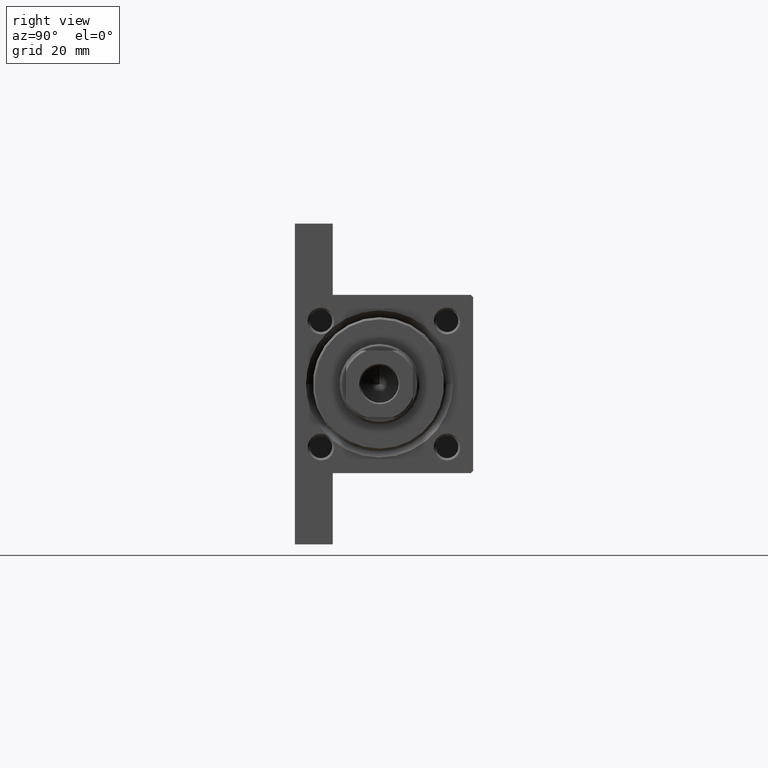
[diagram: clean part render]
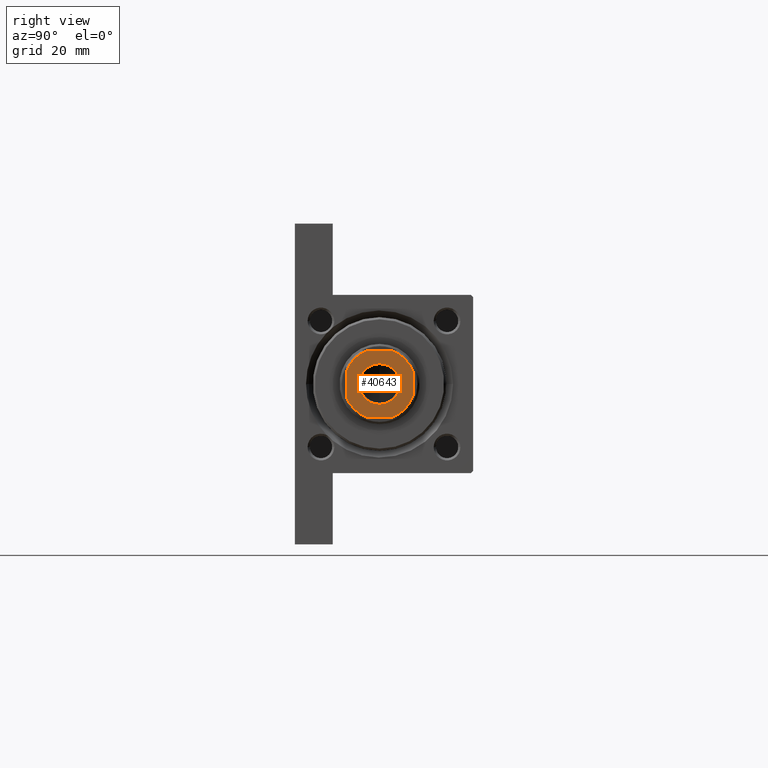
[diagram: same view with one face highlighted and labeled with its STEP entity id]
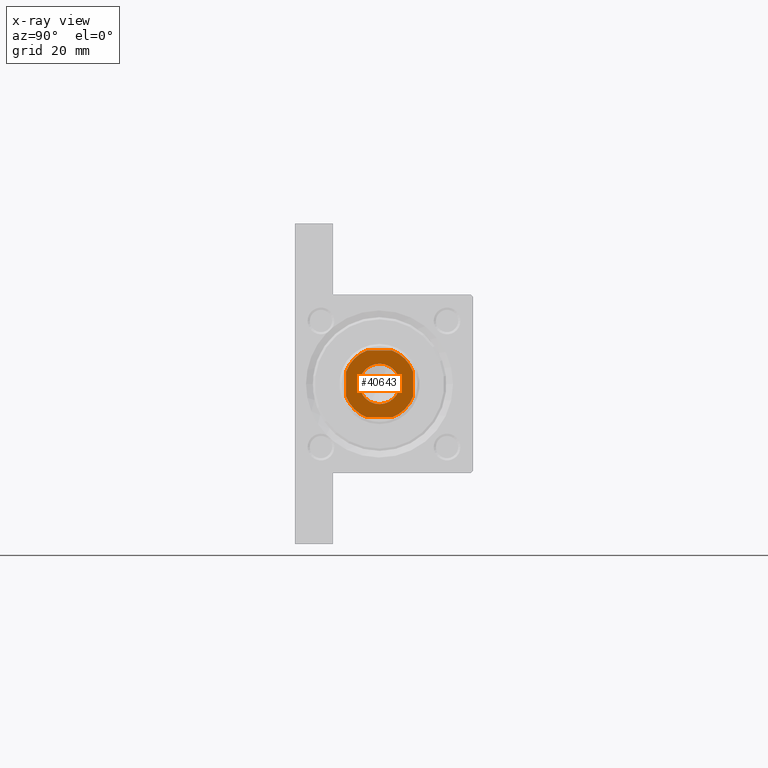
[diagram: x-ray of the same camera — body ghosted, the highlighted face saturated]
A machine part, right view. The second image highlights one B-rep face of the part: STEP entity #40643.
The next image is the same camera in x-ray: the body ghosted, the highlighted face saturated — about 0% of this face is hidden behind the body in this view.
In plain terms, the highlighted planar face has unit normal (1, 0, 0).
Its self-contained STEP definition (entity closure, byte-faithful):
#738 = AXIS2_PLACEMENT_3D ( 'NONE', #45084, #12140, #26824 ) ;
#827 = DIRECTION ( 'NONE',  ( 1.000000000000000000, 0.000000000000000000, 0.000000000000000000 ) ) ;
#1505 = CARTESIAN_POINT ( 'NONE',  ( 0.000000000000000000, 0.000000000000000000, 110.0000000000000000 ) ) ;
#1912 = VERTEX_POINT ( 'NONE', #46128 ) ;
#2195 = ORIENTED_EDGE ( 'NONE', *, *, #21155, .T. ) ;
#2304 = DIRECTION ( 'NONE',  ( 1.000000000000000000, 0.000000000000000000, 0.000000000000000000 ) ) ;
#3823 = EDGE_LOOP ( 'NONE', ( #27108, #17333 ) ) ;
#4742 = AXIS2_PLACEMENT_3D ( 'NONE', #36107, #37052, #32750 ) ;
#4977 = PLANE ( 'NONE',  #43623 ) ;
#5904 = EDGE_CURVE ( 'NONE', #12093, #21364, #44489, .T. ) ;
#5949 = CIRCLE ( 'NONE', #34381, 4.549999999999998934 ) ;
#6183 = VERTEX_POINT ( 'NONE', #38303 ) ;
#6229 = EDGE_CURVE ( 'NONE', #44262, #25656, #28666, .T. ) ;
#8062 = VERTEX_POINT ( 'NONE', #45522 ) ;
#8590 = FACE_OUTER_BOUND ( 'NONE', #15239, .T. ) ;
#8670 = CIRCLE ( 'NONE', #11720, 7.999999999999887201 ) ;
#8885 = DIRECTION ( 'NONE',  ( 0.000000000000000000, -0.000000000000000000, -1.000000000000000000 ) ) ;
#10198 = DIRECTION ( 'NONE',  ( -0.000000000000000000, 0.000000000000000000, 1.000000000000000000 ) ) ;
#10742 = CIRCLE ( 'NONE', #14579, 7.999999999999954703 ) ;
#10821 = DIRECTION ( 'NONE',  ( 1.156482317317871725E-16, -1.000000000000000000, 0.000000000000000000 ) ) ;
#11144 = EDGE_CURVE ( 'NONE', #25656, #37760, #8670, .T. ) ;
#11720 = AXIS2_PLACEMENT_3D ( 'NONE', #44336, #19767, #827 ) ;
#12093 = VERTEX_POINT ( 'NONE', #20023 ) ;
#12140 = DIRECTION ( 'NONE',  ( -0.000000000000000000, 0.000000000000000000, 1.000000000000000000 ) ) ;
#12426 = CARTESIAN_POINT ( 'NONE',  ( 0.000000000000000000, 0.000000000000000000, 110.0000000000000000 ) ) ;
#13321 = ORIENTED_EDGE ( 'NONE', *, *, #39350, .T. ) ;
#14481 = ORIENTED_EDGE ( 'NONE', *, *, #31901, .T. ) ;
#14579 = AXIS2_PLACEMENT_3D ( 'NONE', #17178, #10198, #2304 ) ;
#15104 = CARTESIAN_POINT ( 'NONE',  ( -2.783882181414881973, -7.500000000000000000, 110.0000000000000000 ) ) ;
#15239 = EDGE_LOOP ( 'NONE', ( #43411, #26853, #14481, #2195, #13321, #18226, #23356, #38871 ) ) ;
#16798 = CARTESIAN_POINT ( 'NONE',  ( 2.783882181414688350, 7.499999999999999112, 110.0000000000000000 ) ) ;
#17178 = CARTESIAN_POINT ( 'NONE',  ( 0.000000000000000000, 0.000000000000000000, 110.0000000000000000 ) ) ;
#17333 = ORIENTED_EDGE ( 'NONE', *, *, #36007, .T. ) ;
#17675 = EDGE_CURVE ( 'NONE', #40977, #44262, #10742, .T. ) ;
#18146 = VECTOR ( 'NONE', #40166, 1000.000000000000000 ) ;
#18226 = ORIENTED_EDGE ( 'NONE', *, *, #17675, .T. ) ;
#19767 = DIRECTION ( 'NONE',  ( -0.000000000000000000, 0.000000000000000000, 1.000000000000000000 ) ) ;
#20023 = CARTESIAN_POINT ( 'NONE',  ( 7.500000000000000888, 2.783882181414685686, 110.0000000000000000 ) ) ;
#21155 = EDGE_CURVE ( 'NONE', #6183, #8062, #21603, .T. ) ;
#21364 = VERTEX_POINT ( 'NONE', #16798 ) ;
#21476 = VECTOR ( 'NONE', #25520, 1000.000000000000000 ) ;
#21603 = CIRCLE ( 'NONE', #4742, 7.999999999999954703 ) ;
#21758 = CARTESIAN_POINT ( 'NONE',  ( 4.549999999999998934, 0.000000000000000000, 110.0000000000000000 ) ) ;
#23356 = ORIENTED_EDGE ( 'NONE', *, *, #6229, .T. ) ;
#25482 = CARTESIAN_POINT ( 'NONE',  ( -7.500000000000000000, 7.499999999999998224, 110.0000000000000000 ) ) ;
#25520 = DIRECTION ( 'NONE',  ( 1.000000000000000000, 0.000000000000000000, 0.000000000000000000 ) ) ;
#25656 = VERTEX_POINT ( 'NONE', #27335 ) ;
#25909 = VERTEX_POINT ( 'NONE', #21758 ) ;
#26824 = DIRECTION ( 'NONE',  ( 1.000000000000000000, 0.000000000000000000, 0.000000000000000000 ) ) ;
#26853 = ORIENTED_EDGE ( 'NONE', *, *, #5904, .T. ) ;
#27106 = DIRECTION ( 'NONE',  ( -0.000000000000000000, 0.000000000000000000, 1.000000000000000000 ) ) ;
#27108 = ORIENTED_EDGE ( 'NONE', *, *, #33893, .T. ) ;
#27176 = CARTESIAN_POINT ( 'NONE',  ( 0.000000000000000000, 0.000000000000000000, 110.0000000000000000 ) ) ;
#27335 = CARTESIAN_POINT ( 'NONE',  ( 2.783882181414686574, -7.500000000000000000, 110.0000000000000000 ) ) ;
#27998 = CARTESIAN_POINT ( 'NONE',  ( 7.500000000000000888, -2.783882181414683465, 110.0000000000000000 ) ) ;
#28248 = VECTOR ( 'NONE', #33623, 1000.000000000000000 ) ;
#28666 = LINE ( 'NONE', #32034, #21476 ) ;
#29119 = LINE ( 'NONE', #43765, #38234 ) ;
#29542 = CARTESIAN_POINT ( 'NONE',  ( 7.500000000000000000, 7.500000000000000000, 110.0000000000000000 ) ) ;
#30463 = CIRCLE ( 'NONE', #33515, 4.549999999999998934 ) ;
#31901 = EDGE_CURVE ( 'NONE', #21364, #6183, #32234, .T. ) ;
#32034 = CARTESIAN_POINT ( 'NONE',  ( -7.499999999999998224, -7.500000000000000000, 110.0000000000000000 ) ) ;
#32234 = LINE ( 'NONE', #25482, #18146 ) ;
#32750 = DIRECTION ( 'NONE',  ( 1.000000000000000000, 0.000000000000000000, 0.000000000000000000 ) ) ;
#33515 = AXIS2_PLACEMENT_3D ( 'NONE', #27176, #8885, #33948 ) ;
#33623 = DIRECTION ( 'NONE',  ( -1.156482317317871478E-16, 1.000000000000000000, -0.000000000000000000 ) ) ;
#33893 = EDGE_CURVE ( 'NONE', #25909, #1912, #5949, .T. ) ;
#33948 = DIRECTION ( 'NONE',  ( 1.000000000000000000, 0.000000000000000000, 0.000000000000000000 ) ) ;
#34218 = DIRECTION ( 'NONE',  ( 1.000000000000000000, 0.000000000000000000, 0.000000000000000000 ) ) ;
#34381 = AXIS2_PLACEMENT_3D ( 'NONE', #1505, #45014, #34218 ) ;
#36007 = EDGE_CURVE ( 'NONE', #1912, #25909, #30463, .T. ) ;
#36107 = CARTESIAN_POINT ( 'NONE',  ( 0.000000000000000000, 0.000000000000000000, 110.0000000000000000 ) ) ;
#37052 = DIRECTION ( 'NONE',  ( -0.000000000000000000, 0.000000000000000000, 1.000000000000000000 ) ) ;
#37397 = CARTESIAN_POINT ( 'NONE',  ( -7.499999999999997335, -2.783882181414887302, 110.0000000000000000 ) ) ;
#37760 = VERTEX_POINT ( 'NONE', #27998 ) ;
#38234 = VECTOR ( 'NONE', #10821, 1000.000000000000000 ) ;
#38303 = CARTESIAN_POINT ( 'NONE',  ( -2.783882181414885082, 7.499999999999999112, 110.0000000000000000 ) ) ;
#38871 = ORIENTED_EDGE ( 'NONE', *, *, #11144, .T. ) ;
#39350 = EDGE_CURVE ( 'NONE', #8062, #40977, #29119, .T. ) ;
#40166 = DIRECTION ( 'NONE',  ( -1.000000000000000000, -1.156482317317871478E-16, -0.000000000000000000 ) ) ;
#40643 = ADVANCED_FACE ( 'NONE', ( #44011, #8590 ), #4977, .T. ) ;
#40977 = VERTEX_POINT ( 'NONE', #37397 ) ;
#41773 = DIRECTION ( 'NONE',  ( 1.000000000000000000, 0.000000000000000000, 0.000000000000000000 ) ) ;
#42427 = EDGE_CURVE ( 'NONE', #37760, #12093, #47570, .T. ) ;
#43411 = ORIENTED_EDGE ( 'NONE', *, *, #42427, .T. ) ;
#43623 = AXIS2_PLACEMENT_3D ( 'NONE', #12426, #27106, #41773 ) ;
#43765 = CARTESIAN_POINT ( 'NONE',  ( -7.500000000000000000, 7.499999999999998224, 110.0000000000000000 ) ) ;
#44011 = FACE_BOUND ( 'NONE', #3823, .T. ) ;
#44262 = VERTEX_POINT ( 'NONE', #15104 ) ;
#44336 = CARTESIAN_POINT ( 'NONE',  ( 0.000000000000000000, 0.000000000000000000, 110.0000000000000000 ) ) ;
#44489 = CIRCLE ( 'NONE', #738, 7.999999999999887201 ) ;
#45014 = DIRECTION ( 'NONE',  ( 0.000000000000000000, -0.000000000000000000, -1.000000000000000000 ) ) ;
#45084 = CARTESIAN_POINT ( 'NONE',  ( 0.000000000000000000, 0.000000000000000000, 110.0000000000000000 ) ) ;
#45522 = CARTESIAN_POINT ( 'NONE',  ( -7.499999999999999112, 2.783882181414884638, 110.0000000000000000 ) ) ;
#46128 = CARTESIAN_POINT ( 'NONE',  ( -4.549999999999998934, 5.572142936120455355E-16, 110.0000000000000000 ) ) ;
#47570 = LINE ( 'NONE', #29542, #28248 ) ;